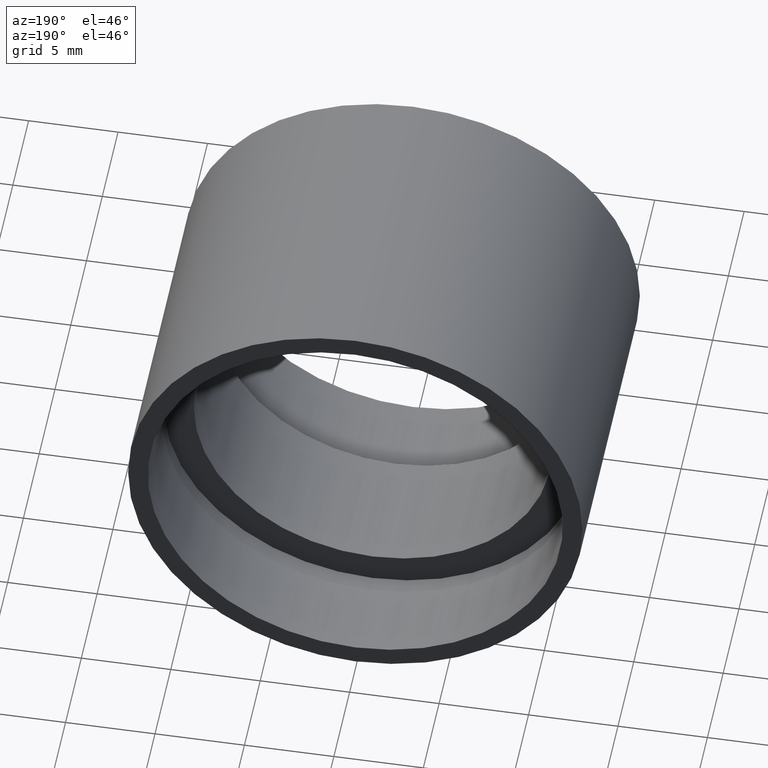
[diagram: clean part render]
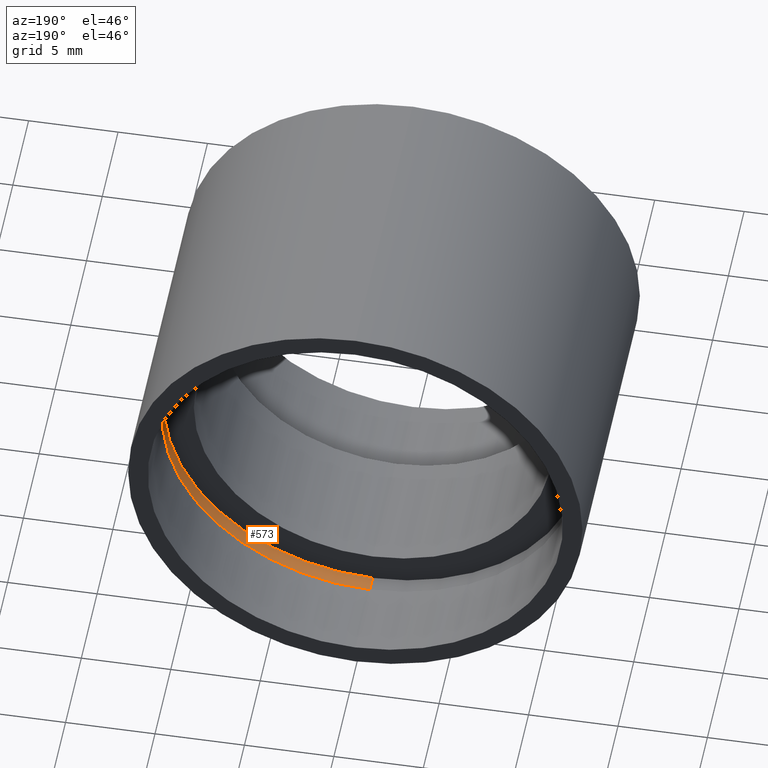
[diagram: same view with one face highlighted and labeled with its STEP entity id]
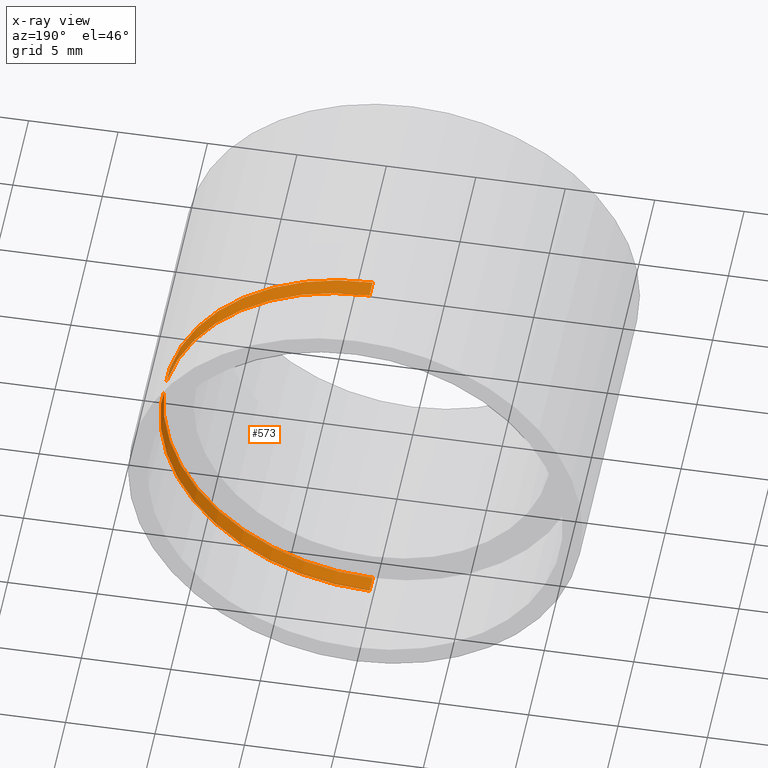
[diagram: x-ray of the same camera — body ghosted, the highlighted face saturated]
A machine part, auxiliary view. The second image highlights one B-rep face of the part: STEP entity #573.
The next image is the same camera in x-ray: the body ghosted, the highlighted face saturated — about 2% of this face is hidden behind the body in this view.
In plain terms, the highlighted cylindrical surface (partial cylindrical patch) has radius 11.7 mm, axis along (-0, 1, -0).
Its self-contained STEP definition (entity closure, byte-faithful):
#46 = FACE_OUTER_BOUND ( 'NONE', #111, .T. ) ;
#49 = ORIENTED_EDGE ( 'NONE', *, *, #207, .T. ) ;
#56 = DIRECTION ( 'NONE',  ( -0.0000000000000000000, 1.000000000000000000, -0.0000000000000000000 ) ) ;
#63 = VERTEX_POINT ( 'NONE', #458 ) ;
#75 = DIRECTION ( 'NONE',  ( 0.0000000000000000000, 0.0000000000000000000, 1.000000000000000000 ) ) ;
#76 = EDGE_CURVE ( 'NONE', #250, #204, #540, .T. ) ;
#86 = DIRECTION ( 'NONE',  ( -0.0000000000000000000, 1.000000000000000000, -0.0000000000000000000 ) ) ;
#93 = CARTESIAN_POINT ( 'NONE',  ( 1.432836755002405500E-015, 13.69999999999999000, -11.70000000000001700 ) ) ;
#111 = EDGE_LOOP ( 'NONE', ( #521, #168, #49, #614 ) ) ;
#114 = VECTOR ( 'NONE', #427, 1000.000000000000000 ) ;
#124 = EDGE_CURVE ( 'NONE', #63, #281, #302, .T. ) ;
#131 = DIRECTION ( 'NONE',  ( 0.0000000000000000000, 0.0000000000000000000, 1.000000000000000000 ) ) ;
#155 = CARTESIAN_POINT ( 'NONE',  ( 1.432836755002405500E-015, 12.69999999999996200, -11.70000000000001700 ) ) ;
#168 = ORIENTED_EDGE ( 'NONE', *, *, #124, .F. ) ;
#179 = DIRECTION ( 'NONE',  ( -0.0000000000000000000, 1.000000000000000000, -0.0000000000000000000 ) ) ;
#204 = VERTEX_POINT ( 'NONE', #93 ) ;
#207 = EDGE_CURVE ( 'NONE', #63, #250, #257, .T. ) ;
#234 = CARTESIAN_POINT ( 'NONE',  ( 0.0000000000000000000, 161.3761669434274500, 0.0000000000000000000 ) ) ;
#250 = VERTEX_POINT ( 'NONE', #575 ) ;
#257 = LINE ( 'NONE', #526, #114 ) ;
#281 = VERTEX_POINT ( 'NONE', #155 ) ;
#302 = CIRCLE ( 'NONE', #375, 11.70000000000001700 ) ;
#359 = AXIS2_PLACEMENT_3D ( 'NONE', #234, #86, #131 ) ;
#375 = AXIS2_PLACEMENT_3D ( 'NONE', #559, #557, #75 ) ;
#400 = EDGE_CURVE ( 'NONE', #281, #204, #532, .T. ) ;
#410 = CARTESIAN_POINT ( 'NONE',  ( 0.0000000000000000000, 13.69999999999999000, 0.0000000000000000000 ) ) ;
#427 = DIRECTION ( 'NONE',  ( -0.0000000000000000000, 1.000000000000000000, -0.0000000000000000000 ) ) ;
#428 = AXIS2_PLACEMENT_3D ( 'NONE', #410, #179, #464 ) ;
#458 = CARTESIAN_POINT ( 'NONE',  ( 0.0000000000000000000, 12.69999999999996200, 11.70000000000001700 ) ) ;
#459 = VECTOR ( 'NONE', #56, 1000.000000000000000 ) ;
#464 = DIRECTION ( 'NONE',  ( 0.0000000000000000000, 0.0000000000000000000, 1.000000000000000000 ) ) ;
#490 = CYLINDRICAL_SURFACE ( 'NONE', #359, 11.70000000000001700 ) ;
#521 = ORIENTED_EDGE ( 'NONE', *, *, #400, .F. ) ;
#526 = CARTESIAN_POINT ( 'NONE',  ( 0.0000000000000000000, 161.3761669434274500, 11.70000000000001700 ) ) ;
#532 = LINE ( 'NONE', #544, #459 ) ;
#540 = CIRCLE ( 'NONE', #428, 11.70000000000001700 ) ;
#544 = CARTESIAN_POINT ( 'NONE',  ( 1.432836755002405500E-015, 161.3761669434274500, -11.70000000000001700 ) ) ;
#557 = DIRECTION ( 'NONE',  ( -0.0000000000000000000, 1.000000000000000000, -0.0000000000000000000 ) ) ;
#559 = CARTESIAN_POINT ( 'NONE',  ( 0.0000000000000000000, 12.69999999999996200, 0.0000000000000000000 ) ) ;
#573 = ADVANCED_FACE ( 'NONE', ( #46 ), #490, .F. ) ;
#575 = CARTESIAN_POINT ( 'NONE',  ( 0.0000000000000000000, 13.69999999999999000, 11.70000000000001700 ) ) ;
#614 = ORIENTED_EDGE ( 'NONE', *, *, #76, .T. ) ;